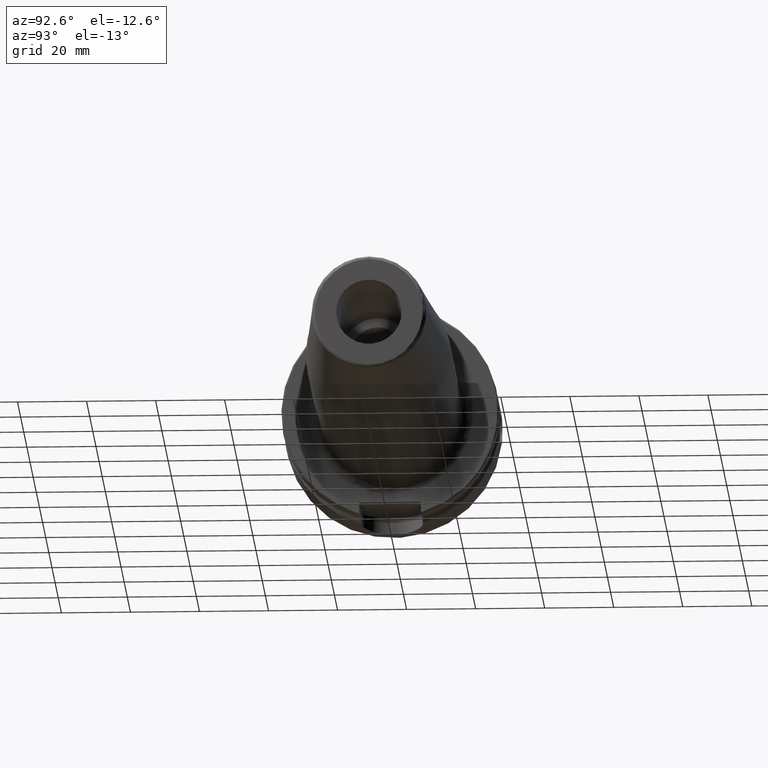
[diagram: clean part render]
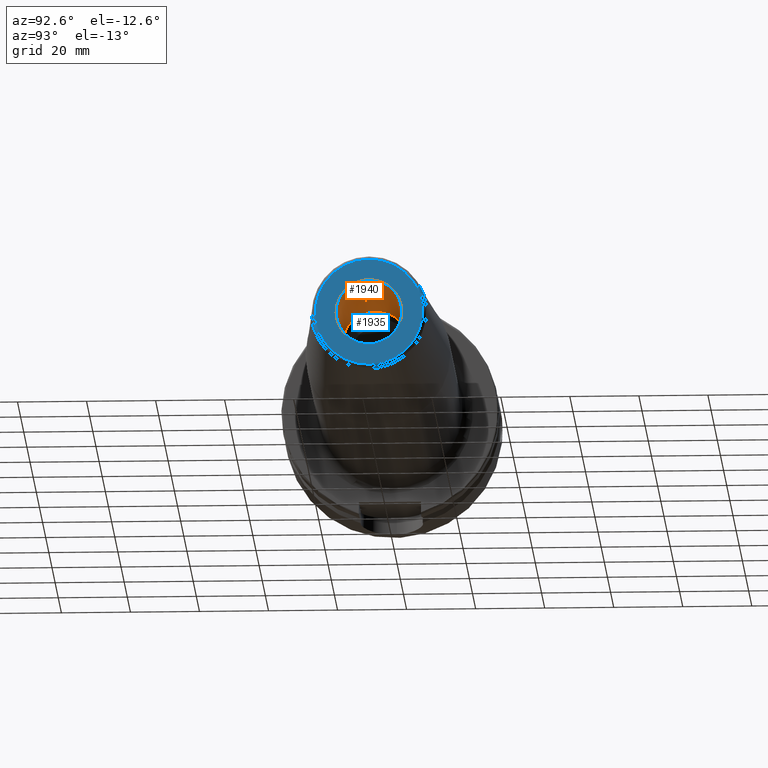
[diagram: same view with the hole feature highlighted: cylindrical wall and planar end face, labeled with their STEP entity ids]
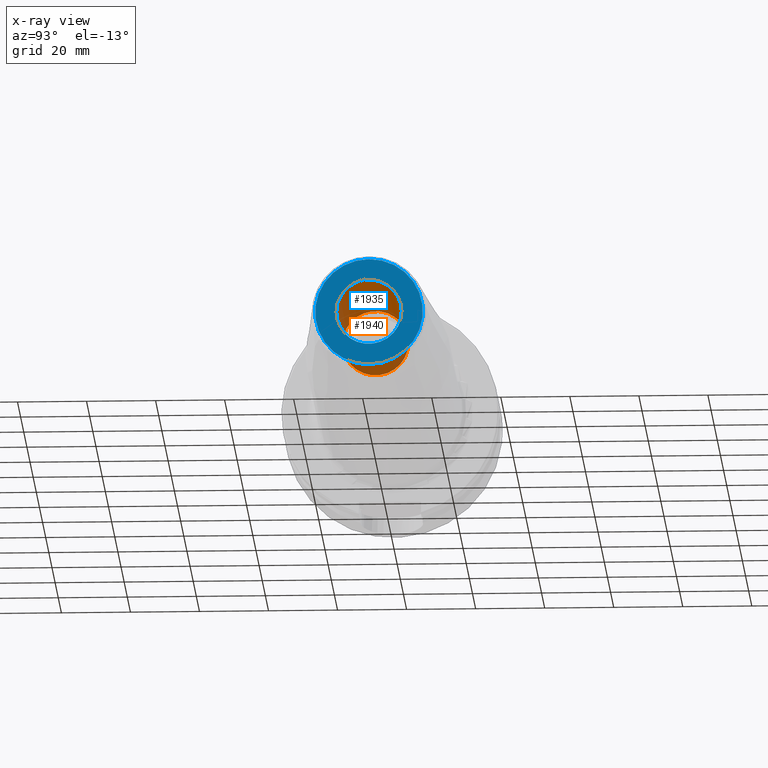
[diagram: x-ray of the same camera — body ghosted, the hole faces saturated]
A machine part, auxiliary view. The highlighted faces form one hole feature of diameter 19.05 mm: the cylindrical wall (entity #1940, orange) and its adjacent planar end face (entity #1935, blue) — they share a circular edge in the B-rep.
The next image is the same camera in x-ray (body ghosted, the hole faces saturated) — the bore reads through the body.
Wall:
#175=CYLINDRICAL_SURFACE('',#2096,9.525);
#215=FACE_OUTER_BOUND('',#333,.T.);
#333=EDGE_LOOP('',(#1340,#1341,#1342,#1343));
#462=LINE('',#2980,#568);
#568=VECTOR('',#2383,9.525);
#670=CIRCLE('',#2083,9.525);
#679=CIRCLE('',#2097,9.525);
#793=VERTEX_POINT('',#2939);
#809=VERTEX_POINT('',#2979);
#997=EDGE_CURVE('',#793,#793,#670,.T.);
#1016=EDGE_CURVE('',#793,#809,#462,.T.);
#1017=EDGE_CURVE('',#809,#809,#679,.T.);
#1340=ORIENTED_EDGE('',*,*,#997,.T.);
#1341=ORIENTED_EDGE('',*,*,#1016,.T.);
#1342=ORIENTED_EDGE('',*,*,#1017,.F.);
#1343=ORIENTED_EDGE('',*,*,#1016,.F.);
#1940=ADVANCED_FACE('',(#215),#175,.F.);
#2083=AXIS2_PLACEMENT_3D('',#2940,#2345,#2346);
#2096=AXIS2_PLACEMENT_3D('',#2978,#2381,#2382);
#2097=AXIS2_PLACEMENT_3D('',#2981,#2384,#2385);
#2345=DIRECTION('center_axis',(1.,0.,0.));
#2346=DIRECTION('ref_axis',(0.,0.,-1.));
#2381=DIRECTION('center_axis',(1.,0.,0.));
#2382=DIRECTION('ref_axis',(0.,1.,0.));
#2383=DIRECTION('',(-1.,0.,0.));
#2384=DIRECTION('center_axis',(1.,0.,0.));
#2385=DIRECTION('ref_axis',(0.,0.,-1.));
#2939=CARTESIAN_POINT('',(160.,-9.525,-1.16647607618785E-15));
#2940=CARTESIAN_POINT('Origin',(160.,0.,0.));
#2978=CARTESIAN_POINT('Origin',(139.,0.,0.));
#2979=CARTESIAN_POINT('',(118.,-9.525,-1.16647607618785E-15));
#2980=CARTESIAN_POINT('',(139.,-9.525,-1.16647607618785E-15));
#2981=CARTESIAN_POINT('Origin',(118.,0.,0.));
End face:
#97=FACE_BOUND('',#327,.T.);
#108=PLANE('',#2082);
#210=FACE_OUTER_BOUND('',#326,.T.);
#326=EDGE_LOOP('',(#1311));
#327=EDGE_LOOP('',(#1312));
#666=CIRCLE('',#2078,15.5756095083418);
#670=CIRCLE('',#2083,9.525);
#790=VERTEX_POINT('',#2931);
#793=VERTEX_POINT('',#2939);
#993=EDGE_CURVE('',#790,#790,#666,.T.);
#997=EDGE_CURVE('',#793,#793,#670,.T.);
#1311=ORIENTED_EDGE('',*,*,#993,.F.);
#1312=ORIENTED_EDGE('',*,*,#997,.F.);
#1935=ADVANCED_FACE('',(#210,#97),#108,.T.);
#2078=AXIS2_PLACEMENT_3D('',#2932,#2335,#2336);
#2082=AXIS2_PLACEMENT_3D('',#2938,#2343,#2344);
#2083=AXIS2_PLACEMENT_3D('',#2940,#2345,#2346);
#2335=DIRECTION('center_axis',(-1.,0.,0.));
#2336=DIRECTION('ref_axis',(0.,-1.,1.83697019872103E-16));
#2343=DIRECTION('center_axis',(1.,0.,0.));
#2344=DIRECTION('ref_axis',(0.,0.,-1.));
#2345=DIRECTION('center_axis',(1.,0.,0.));
#2346=DIRECTION('ref_axis',(0.,0.,-1.));
#2931=CARTESIAN_POINT('',(160.,-1.90746203291599E-15,15.5756095083418));
#2932=CARTESIAN_POINT('Origin',(160.,0.,0.));
#2938=CARTESIAN_POINT('Origin',(160.,9.525,0.));
#2939=CARTESIAN_POINT('',(160.,-9.525,-1.16647607618785E-15));
#2940=CARTESIAN_POINT('Origin',(160.,0.,0.));